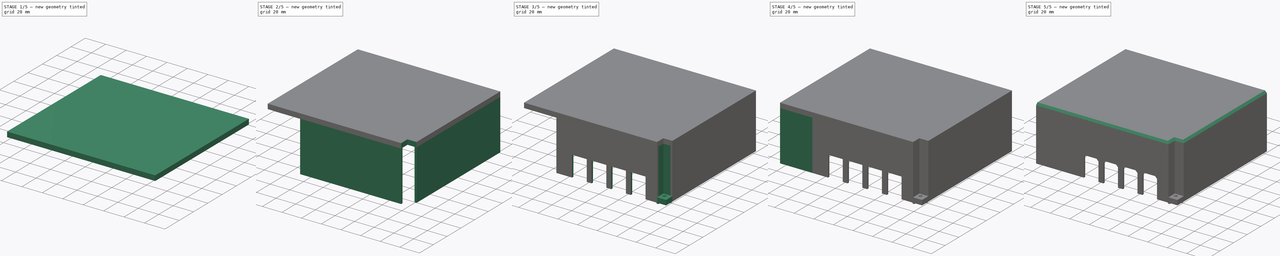
[diagram: build sequence overview — one tinted view per stage of 5, left to right]
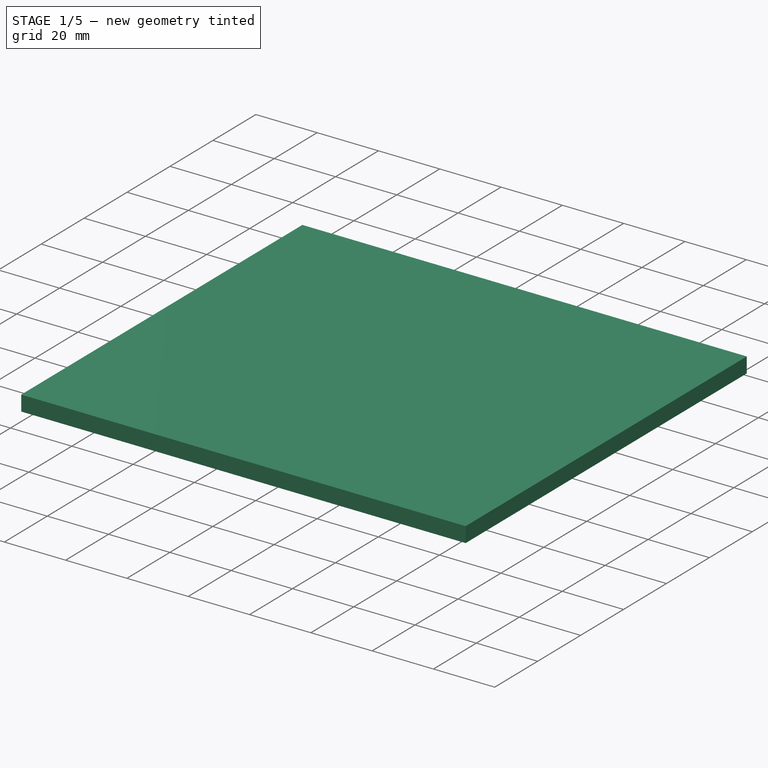
[diagram: stage 1 of 5 — iso view after this stage's code; geometry added in this stage tinted green]
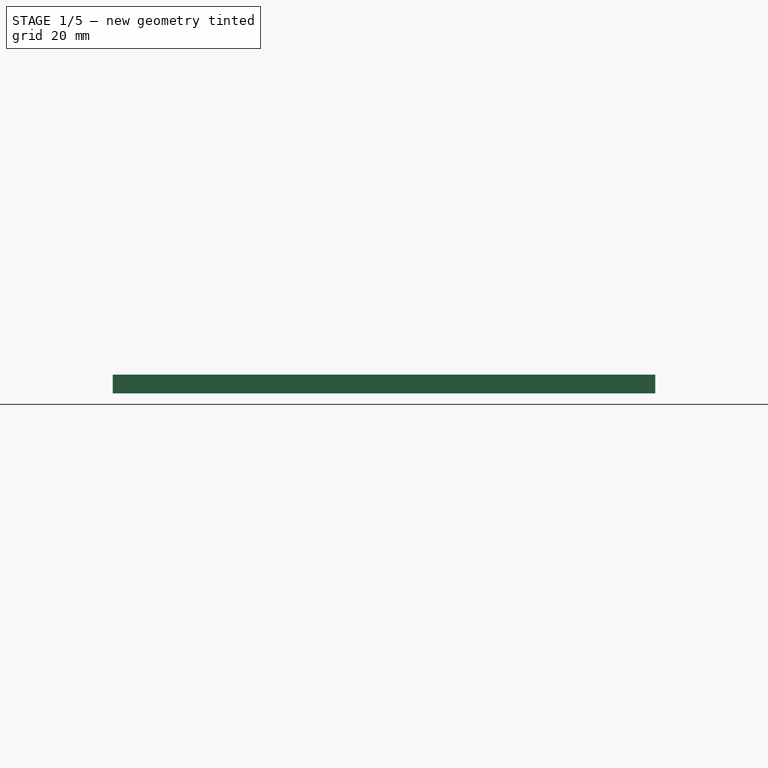
[diagram: stage 1 of 5 — front view after this stage's code; geometry added in this stage tinted green]
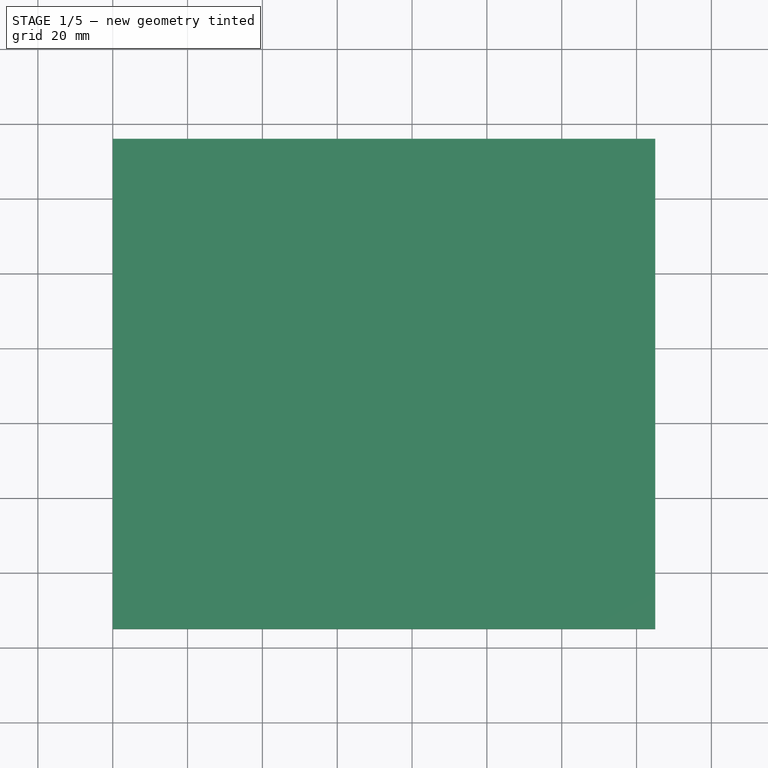
[diagram: stage 1 of 5 — top view after this stage's code; geometry added in this stage tinted green]
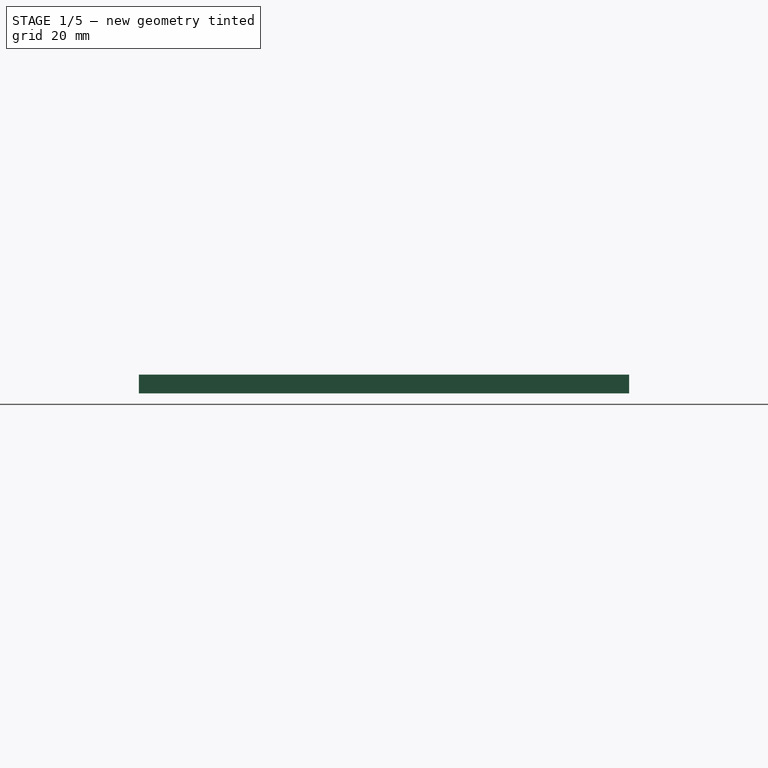
[diagram: stage 1 of 5 — right view after this stage's code; geometry added in this stage tinted green]
FCSTD DOCUMENT  (FreeCAD 2022.1112R26244 +5306 (Git))
Label: FirstPartPeripheralsTop
License: All rights reserved
LicenseURL: http://en.wikipedia.org/wiki/All_rights_reserved
objects: Sketcher::SketchObject×14, PartDesign::Pad×9, PartDesign::Pocket×5, PartDesign::Chamfer×2, PartDesign::CoordinateSystem×1, PartDesign::Body×1, App::Part×1
note: 78 computed .brp shape members not serialized (recipe doc carries the construction recipe); baked Part::Feature solids carry a one-line shape summary decoded from their .brp

FEATURE [PartDesign::CoordinateSystem] LCS_0
  AttacherType = Attacher::AttachEngine3D
  AttachmentSupport = -> [X_Axis001]
  MapMode = 2
  Support = -> [X_Axis001]
  TreeRank = 0
FEATURE [Sketcher::SketchObject] Sketch_1
  ArcFitTolerance = 0
  ExternalBSplineMaxDegree = 0
  ExternalBSplineTolerance = 0
  FullyConstrained = true
  InternalTolerance = 1e-06
  MakeInternals = false
  TreeRank = 0
  sketch-geometry (4):
    g0: LineSegment StartX=0 StartY=0 StartZ=0 EndX=-140 EndY=0 EndZ=0
    g1: LineSegment StartX=-140 StartY=0 StartZ=0 EndX=-140 EndY=116 EndZ=0
    g2: LineSegment StartX=-140 StartY=116 StartZ=0 EndX=0 EndY=116 EndZ=0
    g3: LineSegment StartX=0 StartY=116 StartZ=0 EndX=0 EndY=0 EndZ=0
  constraints (11):
    c: Coincident(g0,g1)
    c: Coincident(g1,g2)
    c: Coincident(g2,g3)
    c: Coincident(g3,g0)
    c: Horizontal(g0)
    c: Horizontal(g2)
    c: Vertical(g1)
    c: Vertical(g3)
    c: Coincident(g0,g-1)
    c: DistanceY(g3,g3) = 116
    c: DistanceX(g2,g2) = 140
FEATURE [PartDesign::Pad] Pad  label="MainSupport"
  AddSubType = 0
  AutoTaperInnerAngle = false
  CheckUpToFaceLimits = true
  ClaimChildren = false
  Direction = (0,0,1)
  Fit = 0
  FitJoin = 0
  InnerFit = 0
  InnerFitJoin = 0
  Length = 5
  Length2 = 100
  NewSolid = false
  Profile = -> Sketch_1
  Suppress = false
  TaperInnerAngle = 0
  TaperInnerAngleRev = 0
  TreeRank = 0
  Type = 0
  _ProfileBasedVersion = 0
FEATURE [Sketcher::SketchObject] Sketch
  ArcFitTolerance = 0
  AttachmentSupport = -> [XY_Plane001]
  ExternalBSplineMaxDegree = 0
  ExternalBSplineTolerance = 0
  ExternalGeometry = -> [Pad]
  FullyConstrained = true
  InternalTolerance = 1e-06
  MakeInternals = false
  MapMode = 5
  Support = -> [XY_Plane001]
  TreeRank = 0
  sketch-geometry (4):
    g0: LineSegment StartX=0 StartY=0 StartZ=0 EndX=-140 EndY=0 EndZ=0
    g1: LineSegment StartX=-140 StartY=0 StartZ=0 EndX=-140 EndY=-15 EndZ=0
    g2: LineSegment StartX=-140 StartY=-15 StartZ=0 EndX=0 EndY=-15 EndZ=0
    g3: LineSegment StartX=0 StartY=-15 StartZ=0 EndX=0 EndY=0 EndZ=0
  constraints (10):
    c: Coincident(g0,g1)
    c: Coincident(g1,g2)
    c: Coincident(g2,g3)
    c: Coincident(g3,g0)
    c: Horizontal(g2)
    c: Vertical(g1)
    c: Vertical(g3)
    c: Coincident(g0,g-1)
    c: Coincident(g0,g-3)
    c: DistanceY(g3,g3) = 15
FEATURE [PartDesign::Pad] Pad001  label="ExtraPeripheralsSize"
  AddSubType = 0
  AutoTaperInnerAngle = false
  BaseFeature = -> Pad
  CheckUpToFaceLimits = true
  ClaimChildren = false
  Direction = (0,0,1)
  Fit = 0
  FitJoin = 0
  InnerFit = 0
  InnerFitJoin = 0
  Length = 5
  Length2 = 100
  NewSolid = false
  Profile = -> Sketch
  Suppress = false
  TaperInnerAngle = 0
  TaperInnerAngleRev = 0
  TreeRank = 0
  Type = 0
  _ProfileBasedVersion = 0
FEATURE [Sketcher::SketchObject] Sketch001
  ArcFitTolerance = 0
  AttachmentSupport = -> [Pad001]
  ExternalBSplineMaxDegree = 0
  ExternalBSplineTolerance = 0
  ExternalGeometry = -> [Pad001]
  FullyConstrained = true
  InternalTolerance = 1e-06
  MakeInternals = false
  MapMode = 5
  Placement = pos=(0,0,0) rot=(0.57735,0.57735,0.57735;2.0944rad)
  Support = -> [Pad001]
  TreeRank = 1
  sketch-geometry (4):
    g0: LineSegment StartX=-15 StartY=5 StartZ=0 EndX=116 EndY=5 EndZ=0
    g1: LineSegment StartX=116 StartY=5 StartZ=0 EndX=116 EndY=0 EndZ=0
    g2: LineSegment StartX=116 StartY=0 StartZ=0 EndX=-15 EndY=0 EndZ=0
    g3: LineSegment StartX=-15 StartY=0 StartZ=0 EndX=-15 EndY=5 EndZ=0
  constraints (10):
    c: Coincident(g0,g1)
    c: Coincident(g1,g2)
    c: Coincident(g2,g3)
    c: Coincident(g3,g0)
    c: Horizontal(g0)
    c: Horizontal(g2)
    c: Vertical(g1)
    c: Vertical(g3)
    c: Coincident(g0,g-3)
    c: Coincident(g1,g-4)
FEATURE [PartDesign::Pad] Pad002  label="ExtraSideSize"
  AddSubType = 0
  AlongSketchNormal = false
  AutoTaperInnerAngle = false
  BaseFeature = -> Pad001
  CheckUpToFaceLimits = true
  ClaimChildren = false
  Direction = (1,0,0)
  Fit = 0
  FitJoin = 0
  InnerFit = 0
  InnerFitJoin = 0
  Length = 5
  Length2 = 100
  Linearize = true
  NewSolid = false
  Profile = -> Sketch001
  Suppress = false
  TaperInnerAngle = 0
  TaperInnerAngleRev = 0
  TreeRank = 2
  Type = 0
  _ProfileBasedVersion = 1
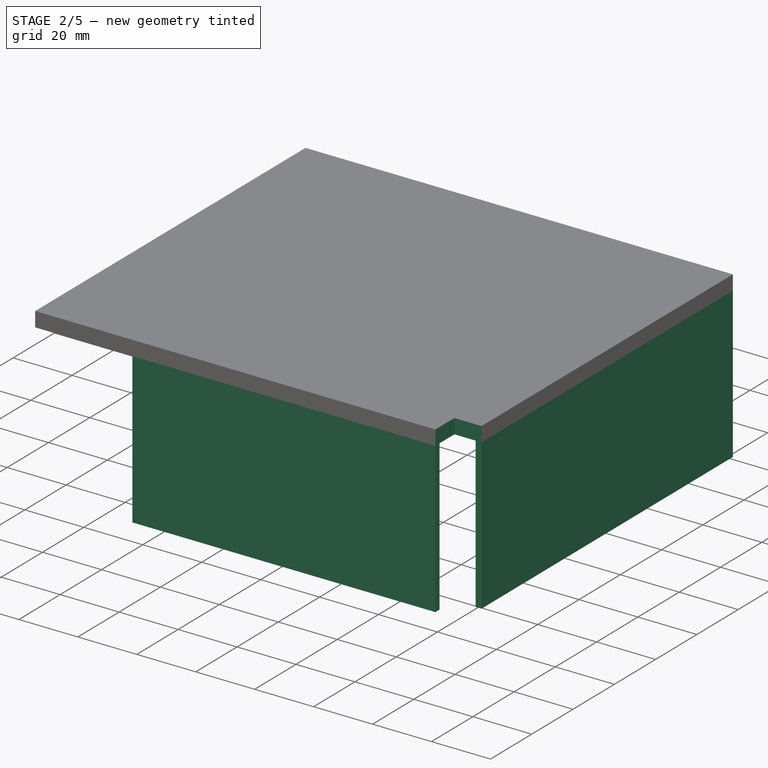
[diagram: stage 2 of 5 — iso view after this stage's code; geometry added in this stage tinted green]
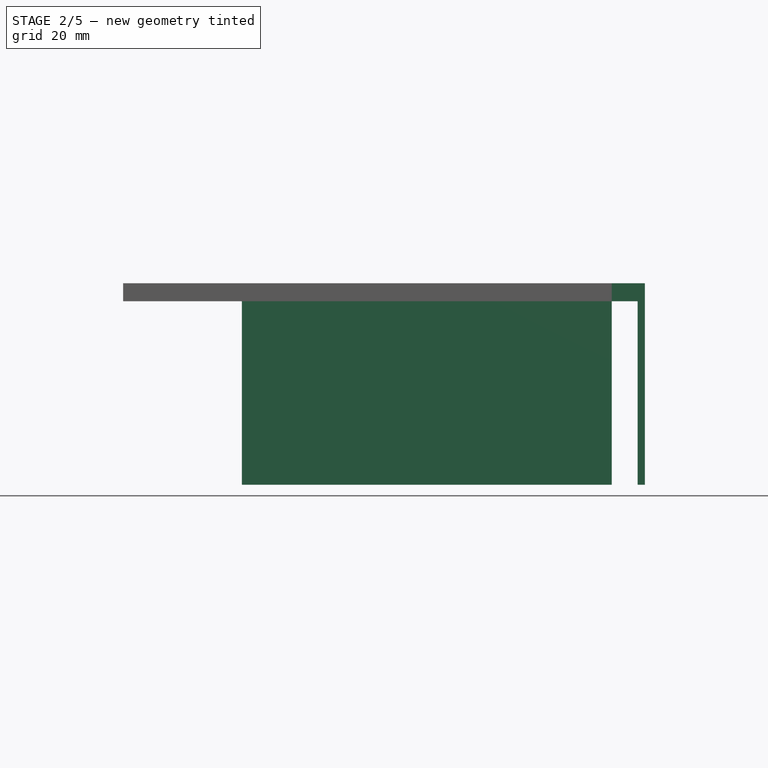
[diagram: stage 2 of 5 — front view after this stage's code; geometry added in this stage tinted green]
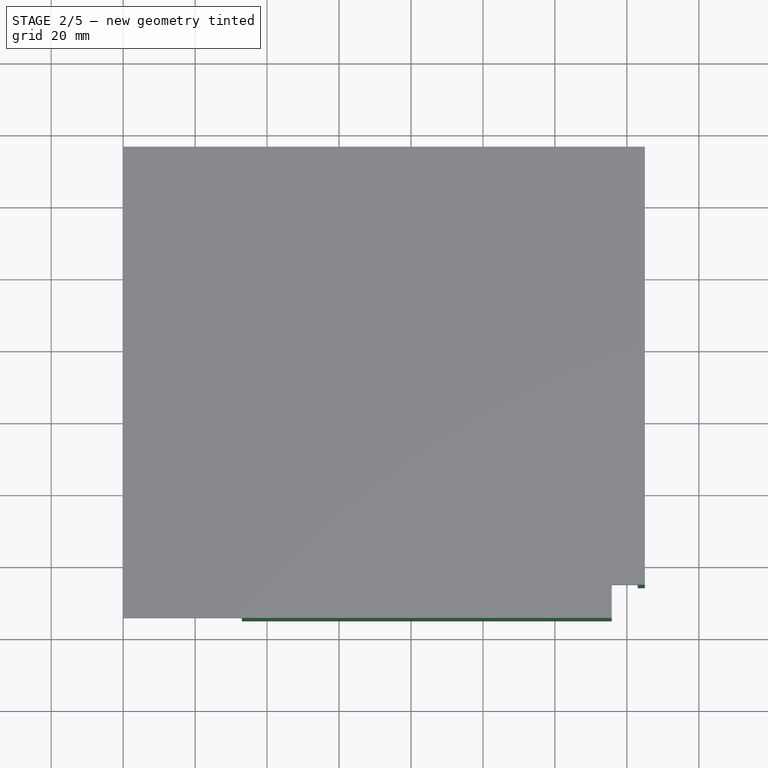
[diagram: stage 2 of 5 — top view after this stage's code; geometry added in this stage tinted green]
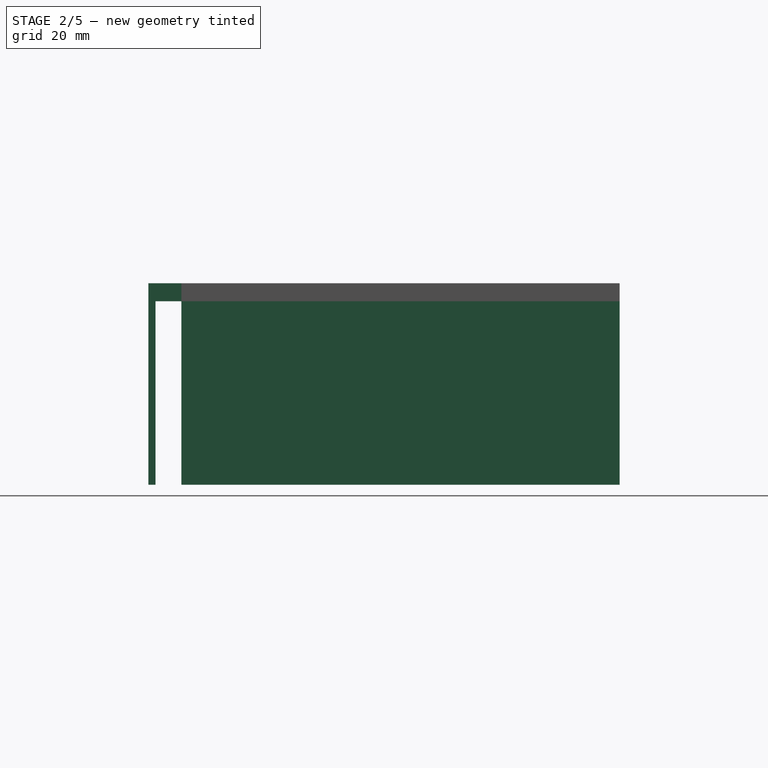
[diagram: stage 2 of 5 — right view after this stage's code; geometry added in this stage tinted green]
FEATURE [Sketcher::SketchObject] Sketch002
  ArcFitTolerance = 0
  AttachmentSupport = -> [Pad002]
  ExternalBSplineMaxDegree = 0
  ExternalBSplineTolerance = 0
  ExternalGeometry = -> [Pad002]
  FullyConstrained = true
  InternalTolerance = 1e-06
  MakeInternals = false
  MapMode = 5
  Placement = pos=(0,0,5) rot=(0,0,1;0rad)
  Support = -> [Pad002]
  TreeRank = 3
  sketch-geometry (4):
    g0: LineSegment StartX=5 StartY=-15 StartZ=0 EndX=-4.2 EndY=-15 EndZ=0
    g1: LineSegment StartX=-4.2 StartY=-15 StartZ=0 EndX=-4.2 EndY=-5.8 EndZ=0
    g2: LineSegment StartX=-4.2 StartY=-5.8 StartZ=0 EndX=5 EndY=-5.8 EndZ=0
    g3: LineSegment StartX=5 StartY=-5.8 StartZ=0 EndX=5 EndY=-15 EndZ=0
  constraints (11):
    c: Coincident(g0,g1)
    c: Coincident(g1,g2)
    c: Coincident(g2,g3)
    c: Coincident(g3,g0)
    c: Horizontal(g0)
    c: Horizontal(g2)
    c: Vertical(g1)
    c: Vertical(g3)
    c: Coincident(g0,g-3)
    c: Equal(g2,g1)
    c: DistanceX(g2,g2) = 9.2
FEATURE [PartDesign::Pocket] Pocket  label="ColumnPartHole"
  AddSubType = 1
  AutoTaperInnerAngle = false
  BaseFeature = -> Pad002
  CheckUpToFaceLimits = true
  ClaimChildren = false
  Fit = 0
  FitJoin = 0
  InnerFit = 0
  InnerFitJoin = 0
  Length = 5
  Length2 = 100
  Linearize = true
  NewSolid = false
  Profile = -> Sketch002
  Suppress = false
  TaperInnerAngle = 0
  TaperInnerAngleRev = 0
  TreeRank = 4
  Type = 0
  _ProfileBasedVersion = 1
  _Version = 1
FEATURE [Sketcher::SketchObject] Sketch003
  ArcFitTolerance = 0
  AttachmentSupport = -> [Pocket]
  ExternalBSplineMaxDegree = 0
  ExternalBSplineTolerance = 0
  ExternalGeometry = -> [Pocket]
  FullyConstrained = true
  InternalTolerance = 1e-06
  MakeInternals = false
  MapMode = 5
  Placement = pos=(0,0,0) rot=(1,0,0;3.14159rad)
  Support = -> [Pocket]
  TreeRank = 5
  sketch-geometry (4):
    g0: LineSegment StartX=-4.2 StartY=15 StartZ=0 EndX=-107 EndY=15 EndZ=0
    g1: LineSegment StartX=-107 StartY=15 StartZ=0 EndX=-107 EndY=13 EndZ=0
    g2: LineSegment StartX=-107 StartY=13 StartZ=0 EndX=-4.2 EndY=13 EndZ=0
    g3: LineSegment StartX=-4.2 StartY=13 StartZ=0 EndX=-4.2 EndY=15 EndZ=0
  constraints (11):
    c: Coincident(g0,g1)
    c: Coincident(g1,g2)
    c: Coincident(g2,g3)
    c: Coincident(g3,g0)
    c: Horizontal(g0)
    c: Horizontal(g2)
    c: Vertical(g1)
    c: Vertical(g3)
    c: Coincident(g0,g-4)
    c: DistanceX(g0,g-1) = 107
    c: DistanceY(g3,g3) = 2
FEATURE [PartDesign::Pad] Pad003  label="PeripheralPanel"
  AddSubType = 0
  AlongSketchNormal = false
  AutoTaperInnerAngle = false
  BaseFeature = -> Pocket
  CheckUpToFaceLimits = true
  ClaimChildren = false
  Direction = (0,0,-1)
  Fit = 0
  FitJoin = 0
  InnerFit = 0
  InnerFitJoin = 0
  Length = 51
  Length2 = 100
  Linearize = true
  NewSolid = false
  Profile = -> Sketch003
  Suppress = false
  TaperInnerAngle = 0
  TaperInnerAngleRev = 0
  TreeRank = 6
  Type = 0
  _ProfileBasedVersion = 1
FEATURE [Sketcher::SketchObject] Sketch004
  ArcFitTolerance = 0
  AttachmentSupport = -> [Pad003]
  ExternalBSplineMaxDegree = 0
  ExternalBSplineTolerance = 0
  ExternalGeometry = -> [Pad003]
  FullyConstrained = true
  InternalTolerance = 1e-06
  MakeInternals = false
  MapMode = 5
  Placement = pos=(0,0,0) rot=(1,0,0;3.14159rad)
  Support = -> [Pad003]
  TreeRank = 7
  sketch-geometry (4):
    g0: LineSegment StartX=5 StartY=-116 StartZ=0 EndX=3 EndY=-116 EndZ=0
    g1: LineSegment StartX=3 StartY=-116 StartZ=0 EndX=3 EndY=5.8 EndZ=0
    g2: LineSegment StartX=3 StartY=5.8 StartZ=0 EndX=5 EndY=5.8 EndZ=0
    g3: LineSegment StartX=5 StartY=5.8 StartZ=0 EndX=5 EndY=-116 EndZ=0
  constraints (10):
    c: Coincident(g0,g1)
    c: Coincident(g1,g2)
    c: Coincident(g2,g3)
    c: Coincident(g3,g0)
    c: Horizontal(g0)
    c: Horizontal(g2)
    c: Vertical(g1)
    c: Coincident(g0,g-3)
    c: Coincident(g2,g-3)
    c: DistanceX(g0,g0) = 2
FEATURE [PartDesign::Pad] Pad004  label="SidePanel"
  AddSubType = 0
  AlongSketchNormal = false
  AutoTaperInnerAngle = false
  BaseFeature = -> Pad003
  CheckUpToFaceLimits = true
  ClaimChildren = false
  Direction = (0,0,-1)
  Fit = 0
  FitJoin = 0
  InnerFit = 0
  InnerFitJoin = 0
  Length = 51
  Length2 = 100
  Linearize = true
  NewSolid = false
  Profile = -> Sketch004
  Suppress = false
  TaperInnerAngle = 0
  TaperInnerAngleRev = 0
  TreeRank = 8
  Type = 0
  _ProfileBasedVersion = 1
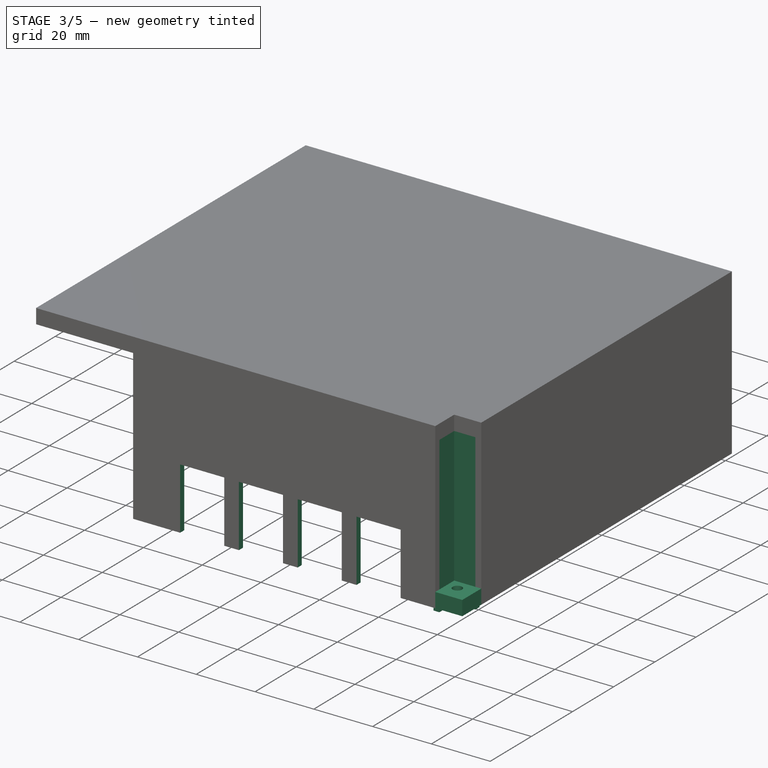
[diagram: stage 3 of 5 — iso view after this stage's code; geometry added in this stage tinted green]
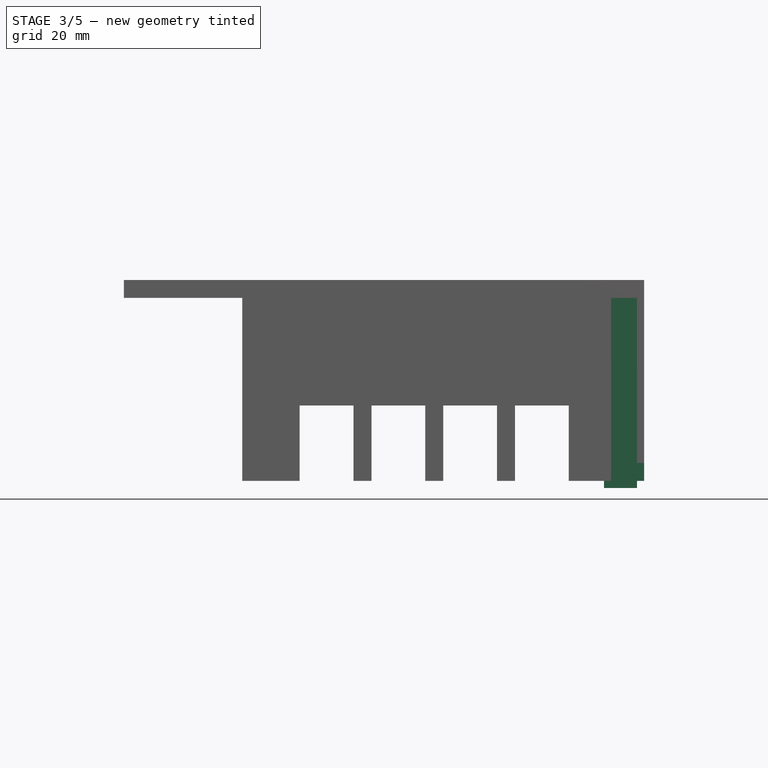
[diagram: stage 3 of 5 — front view after this stage's code; geometry added in this stage tinted green]
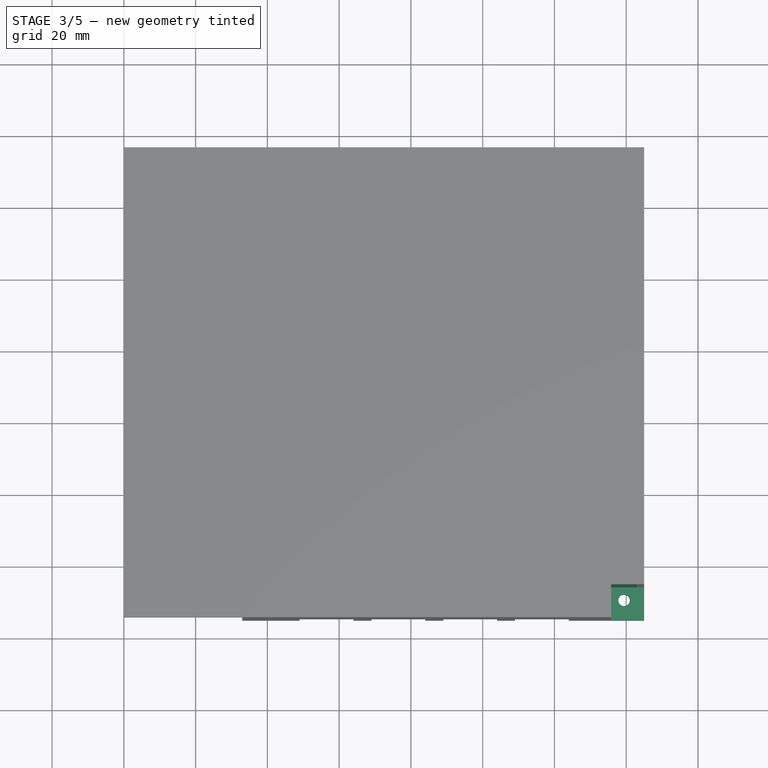
[diagram: stage 3 of 5 — top view after this stage's code; geometry added in this stage tinted green]
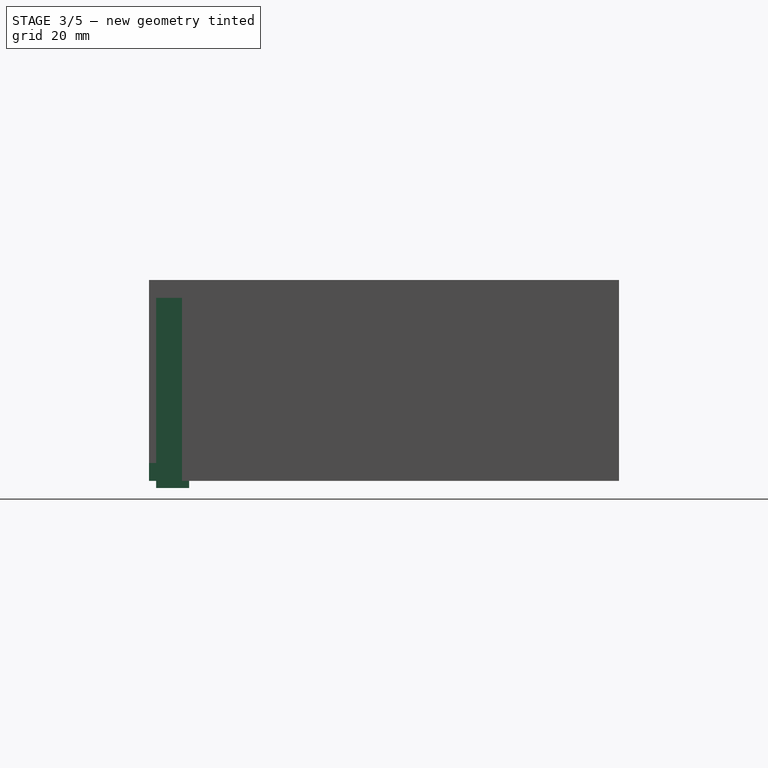
[diagram: stage 3 of 5 — right view after this stage's code; geometry added in this stage tinted green]
FEATURE [Sketcher::SketchObject] Sketch005
  ArcFitTolerance = 0
  AttachmentSupport = -> [Pad004]
  ExternalBSplineMaxDegree = 0
  ExternalBSplineTolerance = 0
  ExternalGeometry = -> [Pad004]
  FullyConstrained = true
  InternalTolerance = 1e-06
  MakeInternals = false
  MapMode = 5
  Placement = pos=(0,0,0) rot=(1,0,0;3.14159rad)
  Support = -> [Pad004]
  TreeRank = 9
  sketch-geometry (6):
    g0: LineSegment StartX=-4.2 StartY=13 StartZ=0 EndX=-6.2 EndY=13 EndZ=0
    g1: LineSegment StartX=-6.2 StartY=13 StartZ=0 EndX=-6.2 EndY=3.8 EndZ=0
    g2: LineSegment StartX=-6.2 StartY=3.8 StartZ=0 EndX=3 EndY=3.8 EndZ=0
    g3: LineSegment StartX=3 StartY=3.8 StartZ=0 EndX=3 EndY=5.8 EndZ=0
    g4: LineSegment StartX=-4.2 StartY=13 StartZ=0 EndX=-4.2 EndY=5.8 EndZ=0
    g5: LineSegment StartX=-4.2 StartY=5.8 StartZ=0 EndX=3 EndY=5.8 EndZ=0
  constraints (15):
    c: Coincident(g0,g-3)
    c: Horizontal(g0)
    c: Coincident(g1,g0)
    c: Vertical(g1)
    c: Coincident(g2,g1)
    c: Horizontal(g2)
    c: Coincident(g3,g2)
    c: Coincident(g3,g-4)
    c: Vertical(g3)
    c: DistanceX(g0,g0) = 2
    c: DistanceY(g3,g3) = 2
    c: Coincident(g4,g0)
    c: Coincident(g4,g-3)
    c: Coincident(g5,g4)
    c: Coincident(g5,g3)
FEATURE [PartDesign::Pad] Pad005  label="ColumnPartPanel"
  AddSubType = 0
  AlongSketchNormal = false
  AutoTaperInnerAngle = false
  BaseFeature = -> Pad004
  CheckUpToFaceLimits = true
  ClaimChildren = false
  Direction = (0,0,-1)
  Fit = 0
  FitJoin = 0
  InnerFit = 0
  InnerFitJoin = 0
  Length = 53
  Length2 = 100
  Linearize = true
  NewSolid = false
  Profile = -> Sketch005
  Suppress = false
  TaperInnerAngle = 0
  TaperInnerAngleRev = 0
  TreeRank = 10
  Type = 0
  _ProfileBasedVersion = 1
FEATURE [Sketcher::SketchObject] Sketch006
  ArcFitTolerance = 0
  AttachmentSupport = -> [Pad005]
  ExternalBSplineMaxDegree = 0
  ExternalBSplineTolerance = 0
  ExternalGeometry = -> [Pad005]
  FullyConstrained = true
  InternalTolerance = 1e-06
  MakeInternals = false
  MapMode = 5
  Placement = pos=(0,-15,0) rot=(1,0,0;1.5708rad)
  Support = -> [Pad005]
  TreeRank = 11
  sketch-geometry (20):
    g0: LineSegment [constr] StartX=0 StartY=0 StartZ=0 EndX=-107 EndY=0 EndZ=0
    g1: LineSegment [constr] StartX=-107 StartY=0 StartZ=0 EndX=-107 EndY=-30 EndZ=0
    g2: LineSegment [constr] StartX=-107 StartY=-30 StartZ=0 EndX=0 EndY=-30 EndZ=0
    g3: LineSegment [constr] StartX=0 StartY=-30 StartZ=0 EndX=0 EndY=0 EndZ=0
    g4: LineSegment StartX=-16 StartY=-30 StartZ=0 EndX=-31 EndY=-30 EndZ=0
    g5: LineSegment StartX=-31 StartY=-30 StartZ=0 EndX=-31 EndY=-71 EndZ=0
    g6: LineSegment StartX=-31 StartY=-71 StartZ=0 EndX=-16 EndY=-71 EndZ=0
    g7: LineSegment StartX=-16 StartY=-71 StartZ=0 EndX=-16 EndY=-30 EndZ=0
    g8: LineSegment StartX=-36 StartY=-30 StartZ=0 EndX=-51 EndY=-30 EndZ=0
    g9: LineSegment StartX=-51 StartY=-30 StartZ=0 EndX=-51 EndY=-71 EndZ=0
    g10: LineSegment StartX=-51 StartY=-71 StartZ=0 EndX=-36 EndY=-71 EndZ=0
    g11: LineSegment StartX=-36 StartY=-71 StartZ=0 EndX=-36 EndY=-30 EndZ=0
    g12: LineSegment StartX=-56 StartY=-30 StartZ=0 EndX=-71 EndY=-30 EndZ=0
    g13: LineSegment StartX=-71 StartY=-30 StartZ=0 EndX=-71 EndY=-71 EndZ=0
    g14: LineSegment StartX=-71 StartY=-71 StartZ=0 EndX=-56 EndY=-71 EndZ=0
    g15: LineSegment StartX=-56 StartY=-71 StartZ=0 EndX=-56 EndY=-30 EndZ=0
    g16: LineSegment StartX=-76 StartY=-30 StartZ=0 EndX=-91 EndY=-30 EndZ=0
    g17: LineSegment StartX=-91 StartY=-30 StartZ=0 EndX=-91 EndY=-71 EndZ=0
    g18: LineSegment StartX=-91 StartY=-71 StartZ=0 EndX=-76 EndY=-71 EndZ=0
    g19: LineSegment StartX=-76 StartY=-71 StartZ=0 EndX=-76 EndY=-30 EndZ=0
  constraints (59):
    c: Coincident(g0,g1)
    c: Coincident(g1,g2)
    c: Coincident(g2,g3)
    c: Coincident(g3,g0)
    c: Horizontal(g0)
    c: Horizontal(g2)
    c: Vertical(g1)
    c: Vertical(g3)
    c: Coincident(g0,g-1)
    c: PointOnObject(g1,g-3)
    c: DistanceY(g1,g1) = 30
    c: Coincident(g4,g5)
    c: Coincident(g5,g6)
    c: Coincident(g6,g7)
    c: Coincident(g7,g4)
    c: Horizontal(g4)
    c: Horizontal(g6)
    c: Vertical(g5)
    c: Vertical(g7)
    c: PointOnObject(g4,g2)
    c: Coincident(g8,g9)
    c: Coincident(g9,g10)
    c: Coincident(g10,g11)
    c: Coincident(g11,g8)
    c: Horizontal(g8)
    c: Horizontal(g10)
    c: Vertical(g9)
    c: Vertical(g11)
    c: PointOnObject(g8,g2)
    c: Coincident(g12,g13)
    c: Coincident(g13,g14)
    c: Coincident(g14,g15)
    c: Coincident(g15,g12)
    c: Horizontal(g12)
    c: Horizontal(g14)
    c: Vertical(g13)
    c: Vertical(g15)
    c: PointOnObject(g12,g2)
    c: Coincident(g16,g17)
    c: Coincident(g17,g18)
    c: Coincident(g18,g19)
    c: Coincident(g19,g16)
    c: Horizontal(g16)
    c: Horizontal(g18)
    c: Vertical(g17)
    c: Vertical(g19)
    c: PointOnObject(g16,g2)
    c: DistanceX(g4,g2) = 16
    c: DistanceX(g4,g4) = 15
    c: Equal(g8,g4)
    c: Equal(g12,g8)
    c: Equal(g16,g12)
    c: DistanceX(g8,g4) = 5
    c: DistanceX(g12,g8) = 5
    c: DistanceX(g16,g12) = 5
    c: Equal(g5,g9)
    c: Equal(g9,g13)
    c: Equal(g13,g17)
    c: DistanceY(g7,g7) = 41
FEATURE [PartDesign::Pocket] Pocket001  label="PeripheralHoles"
  AddSubType = 1
  AutoTaperInnerAngle = false
  BaseFeature = -> Pad005
  CheckUpToFaceLimits = true
  ClaimChildren = false
  Fit = 0
  FitJoin = 0
  InnerFit = 0
  InnerFitJoin = 0
  Length = 0
  Length2 = 100
  Linearize = true
  NewSolid = false
  Profile = -> Sketch006
  Suppress = false
  TaperInnerAngle = 0
  TaperInnerAngleRev = 0
  TreeRank = 12
  Type = 2
  _ProfileBasedVersion = 1
  _Version = 1
FEATURE [Sketcher::SketchObject] Sketch007
  ArcFitTolerance = 0
  AttachmentSupport = -> [Pocket001]
  ExternalBSplineMaxDegree = 0
  ExternalBSplineTolerance = 0
  ExternalGeometry = -> [Pocket001]
  FullyConstrained = true
  InternalTolerance = 1e-06
  MakeInternals = false
  MapMode = 5
  Placement = pos=(0,-5.8,0) rot=(1,0,0;1.5708rad)
  Support = -> [Pocket001]
  TreeRank = 13
  sketch-geometry (4):
    g0: LineSegment StartX=-4.2 StartY=-51 StartZ=0 EndX=5 EndY=-51 EndZ=0
    g1: LineSegment StartX=5 StartY=-51 StartZ=0 EndX=5 EndY=-46 EndZ=0
    g2: LineSegment StartX=5 StartY=-46 StartZ=0 EndX=-4.2 EndY=-46 EndZ=0
    g3: LineSegment StartX=-4.2 StartY=-46 StartZ=0 EndX=-4.2 EndY=-51 EndZ=0
  constraints (10):
    c: Coincident(g0,g1)
    c: Coincident(g1,g2)
    c: Coincident(g2,g3)
    c: Coincident(g3,g0)
    c: Horizontal(g2)
    c: Vertical(g1)
    c: Vertical(g3)
    c: Coincident(g0,g-3)
    c: Coincident(g0,g-4)
    c: DistanceY(g1,g1) = 5
FEATURE [PartDesign::Pad] Pad006  label="HoleSupport"
  AddSubType = 0
  AlongSketchNormal = false
  AutoTaperInnerAngle = false
  BaseFeature = -> Pocket001
  CheckUpToFaceLimits = true
  ClaimChildren = false
  Direction = (0,-1,2e-16)
  Fit = 0
  FitJoin = 0
  InnerFit = 0
  InnerFitJoin = 0
  Length = 10
  Length2 = 100
  Linearize = true
  NewSolid = false
  Profile = -> Sketch007
  Suppress = false
  TaperInnerAngle = 0
  TaperInnerAngleRev = 0
  TreeRank = 14
  Type = 3
  UpToFace = -> Pocket001 [Face12]
  _ProfileBasedVersion = 1
FEATURE [Sketcher::SketchObject] Sketch008
  ArcFitTolerance = 0
  AttachmentSupport = -> [Pad006]
  ExternalBSplineMaxDegree = 0
  ExternalBSplineTolerance = 0
  ExternalGeometry = -> [Pad006]
  FullyConstrained = true
  InternalTolerance = 1e-06
  MakeInternals = false
  MapMode = 5
  Placement = pos=(0,-1.01e-14,-46) rot=(0,0,1;0rad)
  Support = -> [Pad006]
  TreeRank = 15
  sketch-geometry (3):
    g0: LineSegment [constr] StartX=-4.2 StartY=-9.4 StartZ=0 EndX=-0.6 EndY=-9.4 EndZ=0
    g1: LineSegment [constr] StartX=-0.6 StartY=-9.4 StartZ=0 EndX=-0.6 EndY=-15 EndZ=0
    g2: Circle CenterX=-0.6 CenterY=-9.4 CenterZ=0 NormalX=0 NormalY=0 NormalZ=1 AngleXU=0 Radius=1.6
  constraints (9):
    c: Horizontal(g0)
    c: Coincident(g1,g0)
    c: Vertical(g1)
    c: Coincident(g2,g0)
    c: Diameter(g2) = 3.2
    c: PointOnObject(g0,g-3)
    c: PointOnObject(g1,g-4)
    c: DistanceX(g-4,g1) = 3.6
    c: DistanceY(g0,g-3) = 3.6
FEATURE [PartDesign::Pocket] Pocket002  label="Hole"
  AddSubType = 1
  AutoTaperInnerAngle = false
  BaseFeature = -> Pad006
  CheckUpToFaceLimits = true
  ClaimChildren = false
  Fit = 0
  FitJoin = 0
  InnerFit = 0
  InnerFitJoin = 0
  Length = 5
  Length2 = 100
  Linearize = true
  NewSolid = false
  Profile = -> Sketch008
  Suppress = false
  TaperInnerAngle = 0
  TaperInnerAngleRev = 0
  TreeRank = 16
  Type = 2
  _ProfileBasedVersion = 1
  _Version = 1
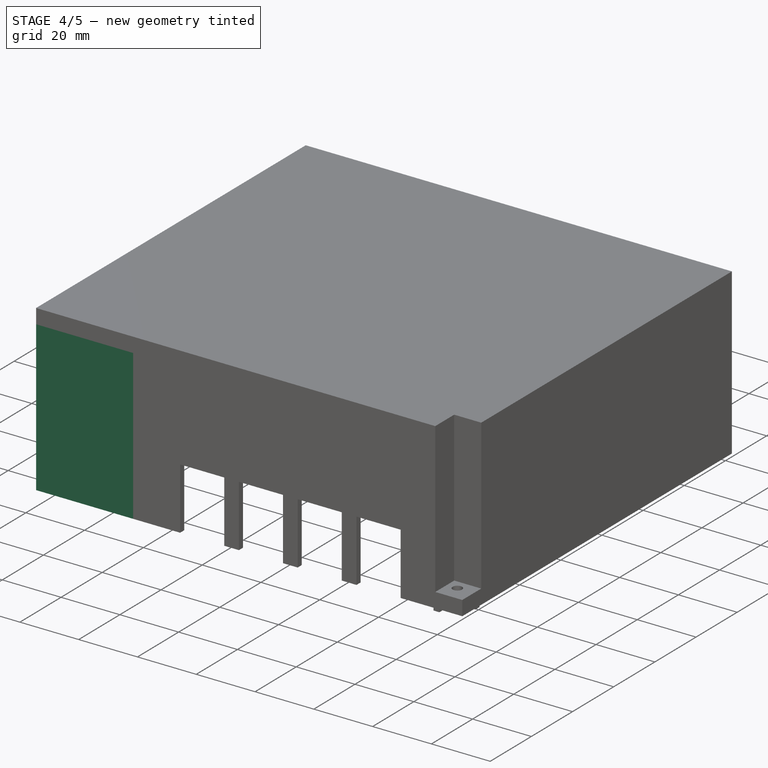
[diagram: stage 4 of 5 — iso view after this stage's code; geometry added in this stage tinted green]
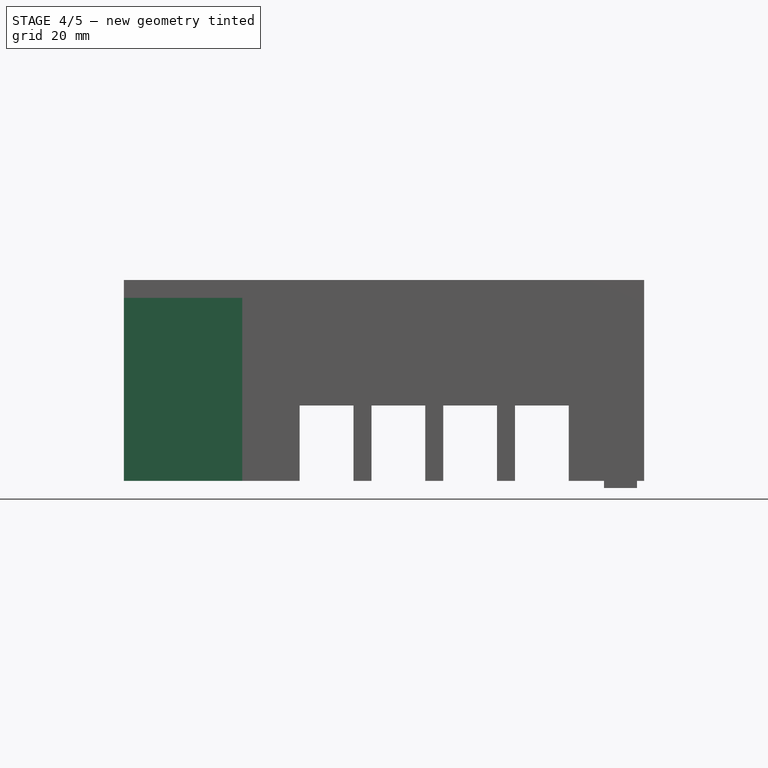
[diagram: stage 4 of 5 — front view after this stage's code; geometry added in this stage tinted green]
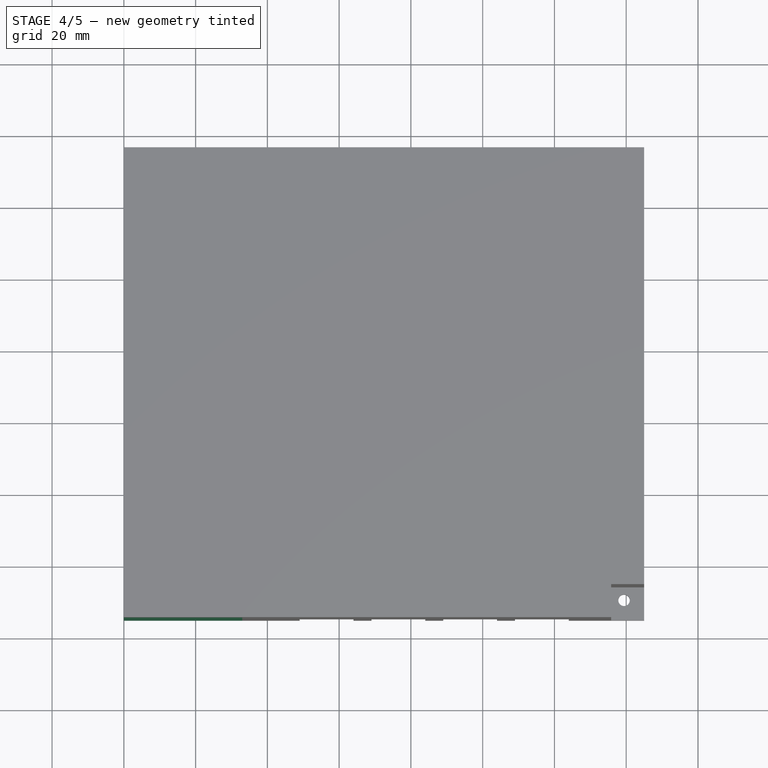
[diagram: stage 4 of 5 — top view after this stage's code; geometry added in this stage tinted green]
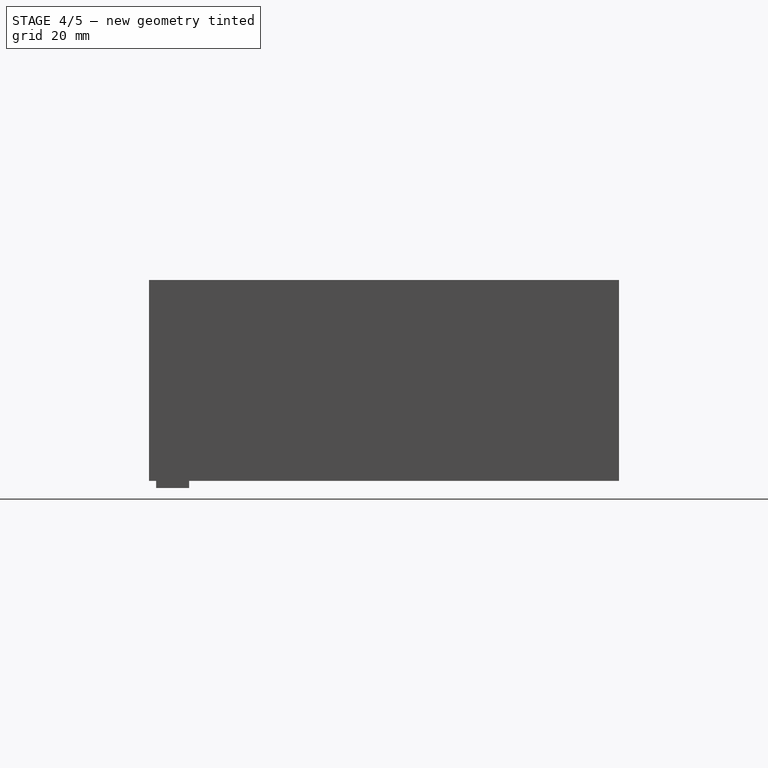
[diagram: stage 4 of 5 — right view after this stage's code; geometry added in this stage tinted green]
FEATURE [Sketcher::SketchObject] Sketch009
  ArcFitTolerance = 0
  AttachmentSupport = -> [Pocket002]
  ExternalBSplineMaxDegree = 0
  ExternalBSplineTolerance = 0
  ExternalGeometry = -> [Pocket002]
  FullyConstrained = true
  InternalTolerance = 1e-06
  MakeInternals = false
  MapMode = 5
  Placement = pos=(0,0,0) rot=(1,0,0;3.14159rad)
  Support = -> [Pocket002]
  TreeRank = 17
  sketch-geometry (4):
    g0: LineSegment StartX=-140 StartY=15 StartZ=0 EndX=-107 EndY=15 EndZ=0
    g1: LineSegment StartX=-107 StartY=15 StartZ=0 EndX=-107 EndY=13 EndZ=0
    g2: LineSegment StartX=-107 StartY=13 StartZ=0 EndX=-140 EndY=13 EndZ=0
    g3: LineSegment StartX=-140 StartY=13 StartZ=0 EndX=-140 EndY=15 EndZ=0
  constraints (10):
    c: Coincident(g0,g1)
    c: Coincident(g1,g2)
    c: Coincident(g2,g3)
    c: Coincident(g3,g0)
    c: Horizontal(g0)
    c: Horizontal(g2)
    c: Vertical(g1)
    c: Vertical(g3)
    c: Coincident(g0,g-3)
    c: Coincident(g1,g-4)
FEATURE [PartDesign::Pad] Pad007  label="EndPeripheralPanel"
  AddSubType = 0
  AlongSketchNormal = false
  AutoTaperInnerAngle = false
  BaseFeature = -> Pocket002
  CheckUpToFaceLimits = true
  ClaimChildren = false
  Direction = (0,0,-1)
  Fit = 0
  FitJoin = 0
  InnerFit = 0
  InnerFitJoin = 0
  Length = 51
  Length2 = 100
  Linearize = true
  NewSolid = false
  Profile = -> Sketch009
  Suppress = false
  TaperInnerAngle = 0
  TaperInnerAngleRev = 0
  TreeRank = 18
  Type = 0
  _ProfileBasedVersion = 1
FEATURE [Sketcher::SketchObject] Sketch010
  ArcFitTolerance = 0
  AttachmentSupport = -> [Pad007]
  ExternalBSplineMaxDegree = 0
  ExternalBSplineTolerance = 0
  ExternalGeometry = -> [Pad007]
  FullyConstrained = true
  InternalTolerance = 1e-06
  MakeInternals = false
  MapMode = 5
  Placement = pos=(-140,0,0) rot=(0.57735,-0.57735,-0.57735;2.0944rad)
  Support = -> [Pad007]
  TreeRank = 19
  sketch-geometry (4):
    g0: LineSegment StartX=-95.05 StartY=3.58 StartZ=0 EndX=13.05 EndY=3.58 EndZ=0
    g1: LineSegment StartX=13.05 StartY=3.58 StartZ=0 EndX=13.05 EndY=1.5 EndZ=0
    g2: LineSegment StartX=13.05 StartY=1.5 StartZ=0 EndX=-95.05 EndY=1.5 EndZ=0
    g3: LineSegment StartX=-95.05 StartY=1.5 StartZ=0 EndX=-95.05 EndY=3.58 EndZ=0
  constraints (12):
    c: Coincident(g0,g1)
    c: Coincident(g1,g2)
    c: Coincident(g2,g3)
    c: Coincident(g3,g0)
    c: Horizontal(g0)
    c: Horizontal(g2)
    c: Vertical(g1)
    c: Vertical(g3)
    c: DistanceX(g-3,g0) = 20.95
    c: DistanceX(g0,g-4) = 1.95
    c: DistanceY(g1,g1) = 2.08
    c: DistanceY(g-4,g1) = 1.5
FEATURE [PartDesign::Pocket] Pocket003  label="PuzzleHole1"
  AddSubType = 1
  AutoTaperInnerAngle = false
  BaseFeature = -> Pad007
  CheckUpToFaceLimits = true
  ClaimChildren = false
  Fit = 0
  FitJoin = 0
  InnerFit = 0
  InnerFitJoin = 0
  Length = 11
  Length2 = 100
  Linearize = true
  NewSolid = false
  Profile = -> Sketch010
  Suppress = false
  TaperInnerAngle = 0
  TaperInnerAngleRev = 0
  TreeRank = 20
  Type = 0
  _ProfileBasedVersion = 1
  _Version = 1
FEATURE [Sketcher::SketchObject] Sketch011
  ArcFitTolerance = 0
  AttachmentSupport = -> [Pocket003]
  ExternalBSplineMaxDegree = 0
  ExternalBSplineTolerance = 0
  ExternalGeometry = -> [Pocket003]
  FullyConstrained = true
  InternalTolerance = 1e-06
  MakeInternals = false
  MapMode = 5
  Placement = pos=(0,116,0) rot=(0,0.707107,0.707107;3.14159rad)
  Support = -> [Pocket003]
  TreeRank = 21
  sketch-geometry (4):
    g0: LineSegment StartX=-3.05 StartY=3.58 StartZ=0 EndX=119.05 EndY=3.58 EndZ=0
    g1: LineSegment StartX=119.05 StartY=3.58 StartZ=0 EndX=119.05 EndY=1.5 EndZ=0
    g2: LineSegment StartX=119.05 StartY=1.5 StartZ=0 EndX=-3.05 EndY=1.5 EndZ=0
    g3: LineSegment StartX=-3.05 StartY=1.5 StartZ=0 EndX=-3.05 EndY=3.58 EndZ=0
  constraints (12):
    c: Coincident(g0,g1)
    c: Coincident(g1,g2)
    c: Coincident(g2,g3)
    c: Coincident(g3,g0)
    c: Horizontal(g0)
    c: Horizontal(g2)
    c: Vertical(g1)
    c: Vertical(g3)
    c: DistanceX(g0,g-3) = 20.95
    c: DistanceX(g-4,g0) = 1.95
    c: DistanceY(g3,g3) = 2.08
    c: DistanceY(g-4,g2) = 1.5
FEATURE [PartDesign::Pocket] Pocket004  label="PuzzleHole2"
  AddSubType = 1
  AutoTaperInnerAngle = false
  BaseFeature = -> Pocket003
  CheckUpToFaceLimits = true
  ClaimChildren = false
  Fit = 0
  FitJoin = 0
  InnerFit = 0
  InnerFitJoin = 0
  Length = 11
  Length2 = 100
  Linearize = true
  NewSolid = false
  Profile = -> Sketch011
  Suppress = false
  TaperInnerAngle = 0
  TaperInnerAngleRev = 0
  TreeRank = 22
  Type = 0
  _ProfileBasedVersion = 1
  _Version = 1
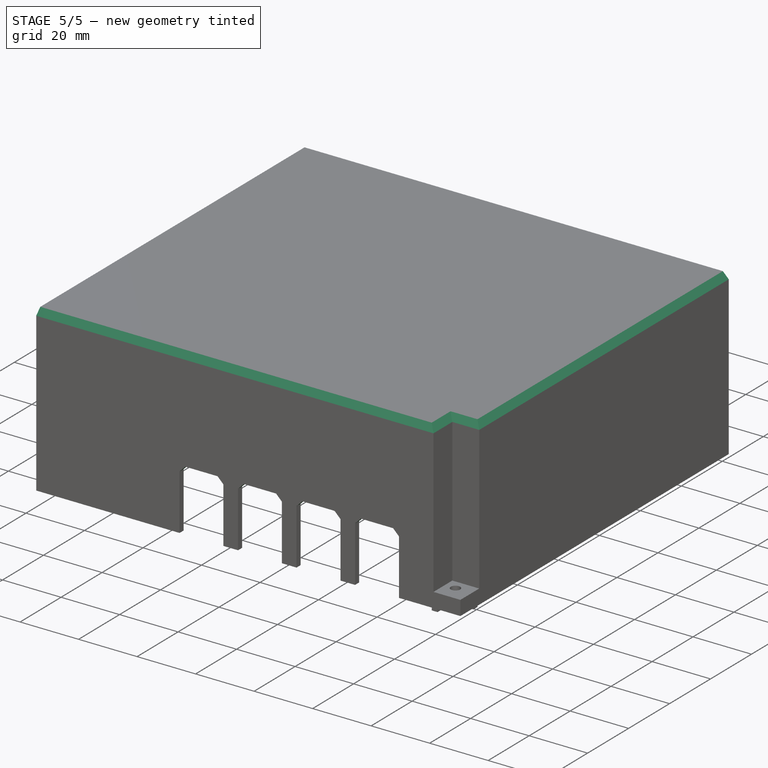
[diagram: stage 5 of 5 — iso view after this stage's code; geometry added in this stage tinted green]
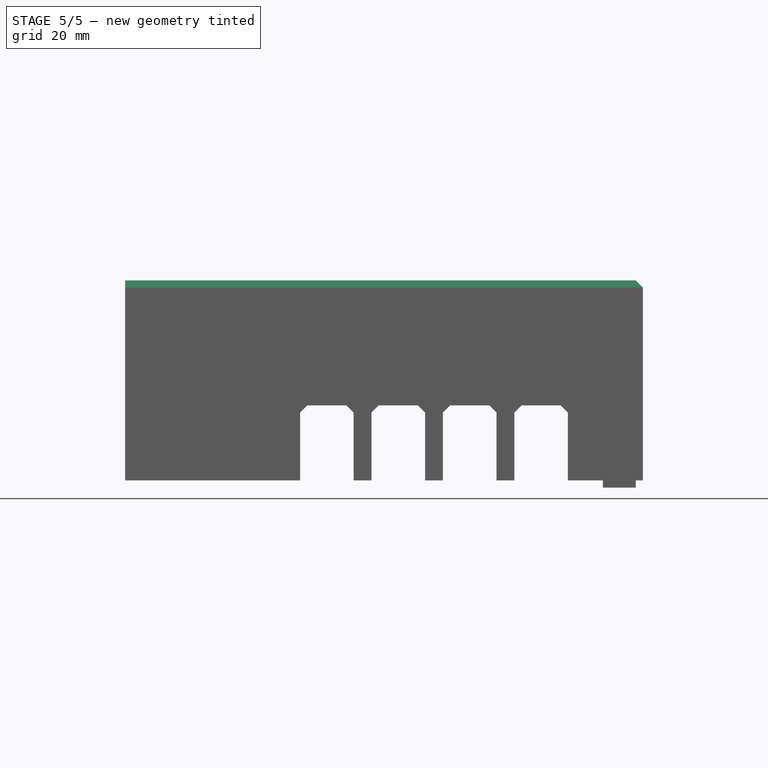
[diagram: stage 5 of 5 — front view after this stage's code; geometry added in this stage tinted green]
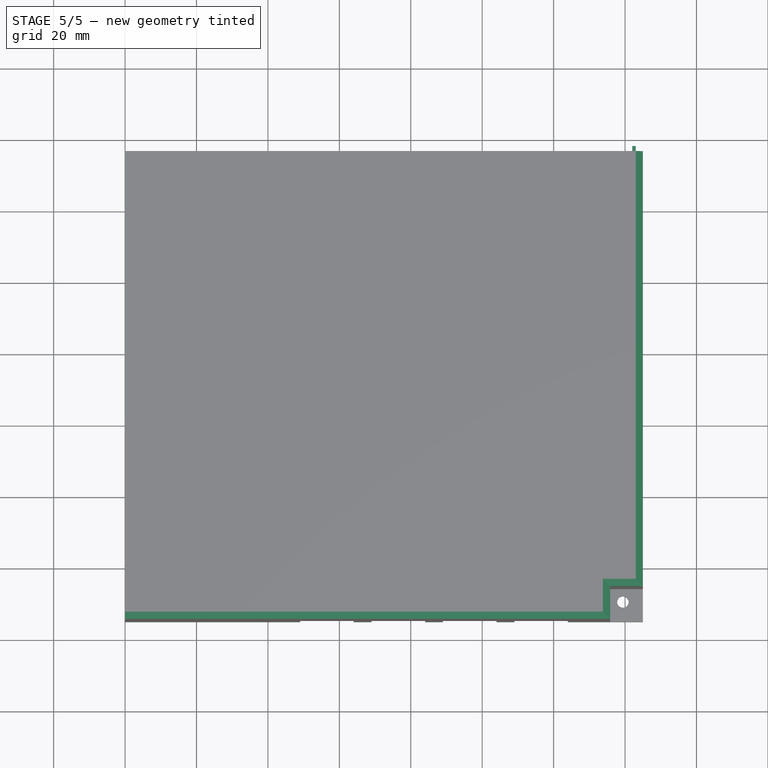
[diagram: stage 5 of 5 — top view after this stage's code; geometry added in this stage tinted green]
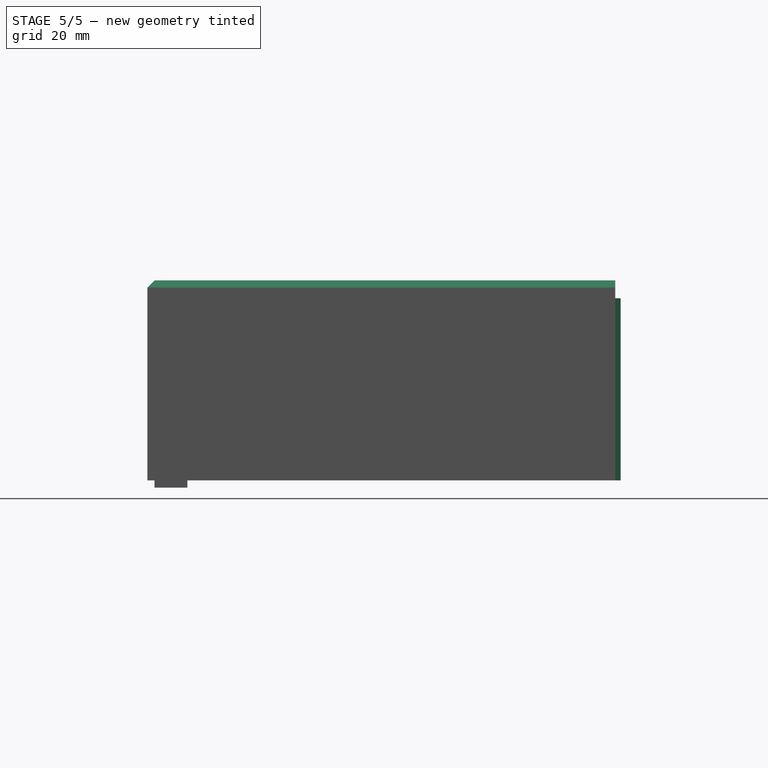
[diagram: stage 5 of 5 — right view after this stage's code; geometry added in this stage tinted green]
FEATURE [PartDesign::Chamfer] Chamfer
  AddSubType = 0
  Angle = 45
  Base = -> Pocket004 [Edge58,Edge57,Edge56,Edge60,Edge59]
  BaseFeature = -> Pocket004
  ChamferType = 0
  FlipDirection = false
  NewSolid = false
  Size = 2
  Size2 = 1
  SupportTransform = false
  Suppress = false
  TreeRank = 23
FEATURE [Sketcher::SketchObject] Sketch012
  ArcFitTolerance = 0
  AttachmentSupport = -> [Chamfer]
  ExternalBSplineMaxDegree = 0
  ExternalBSplineTolerance = 0
  ExternalGeometry = -> [Chamfer]
  FullyConstrained = true
  InternalTolerance = 1e-06
  MakeInternals = false
  MapMode = 5
  Placement = pos=(0,0,0) rot=(1,0,0;3.14159rad)
  Support = -> [Chamfer]
  TreeRank = 24
  sketch-geometry (6):
    g0: LineSegment [constr] StartX=3 StartY=-114 StartZ=0 EndX=2 EndY=-114 EndZ=0
    g1: LineSegment StartX=2 StartY=-114 StartZ=0 EndX=2 EndY=-117.5 EndZ=0
    g2: LineSegment StartX=2 StartY=-117.5 StartZ=0 EndX=3 EndY=-117.5 EndZ=0
    g3: LineSegment StartX=3 StartY=-117.5 StartZ=0 EndX=3 EndY=-114 EndZ=0
    g4: LineSegment StartX=2 StartY=-114 StartZ=0 EndX=3 EndY=-113 EndZ=0
    g5: LineSegment StartX=3 StartY=-113 StartZ=0 EndX=3 EndY=-114 EndZ=0
  constraints (17):
    c: Coincident(g0,g1)
    c: Coincident(g1,g2)
    c: Coincident(g2,g3)
    c: Coincident(g3,g0)
    c: Horizontal(g0)
    c: Horizontal(g2)
    c: Vertical(g1)
    c: Vertical(g3)
    c: PointOnObject(g0,g-3)
    c: DistanceY(g-3,g0) = 2
    c: DistanceY(g2,g-3) = 1.5
    c: DistanceX(g0,g0) = 1
    c: Coincident(g4,g1)
    c: PointOnObject(g4,g-3)
    c: Coincident(g5,g4)
    c: Coincident(g5,g3)
    c: Angle(g0,g4) = 0.785398
FEATURE [PartDesign::Pad] Pad008  label="PanelGuard"
  AddSubType = 0
  AlongSketchNormal = false
  AutoTaperInnerAngle = false
  BaseFeature = -> Chamfer
  CheckUpToFaceLimits = true
  ClaimChildren = false
  Direction = (0,0,-1)
  Fit = 0
  FitJoin = 0
  InnerFit = 0
  InnerFitJoin = 0
  Length = 10
  Length2 = 100
  Linearize = true
  NewSolid = false
  Profile = -> Sketch012
  Suppress = false
  TaperInnerAngle = 0
  TaperInnerAngleRev = 0
  TreeRank = 25
  Type = 3
  UpToFace = -> Chamfer [Face69]
  _ProfileBasedVersion = 1
FEATURE [PartDesign::Chamfer] Chamfer001
  AddSubType = 0
  Angle = 45
  Base = -> Pad008 [Edge126,Edge127,Edge130,Edge131,Edge134,Edge135,Edge138,Edge139]
  BaseFeature = -> Pad008
  ChamferType = 0
  FlipDirection = false
  NewSolid = false
  Size = 2
  Size2 = 1
  SupportTransform = false
  Suppress = false
  TreeRank = 26
FEATURE [PartDesign::Body] Body
  AutoGroupSolids = false
  ClaimAllChildren = false
  ExportMode = 0
  Group = -> [LCS_0,Sketch_1,Pad,Sketch,Pad001,Sketch001,Pad002,Sketch002,Pocket,Sketch003,Pad003,Sketch004,Pad004,Sketch005,Pad005,Sketch006,Pocket001,Sketch007,Pad006,Sketch008,Pocket002,Sketch009,Pad007,Sketch010,Pocket003,Sketch011,Pocket004,Chamfer,Sketch012,Pad008,Chamfer001]
  Origin = -> Origin001
  Tip = -> Chamfer001
  TreeRank = 0
  _ExportChildren = -> [LCS_0,Pad,Pad001,Pad002,Pocket,Pad003,Pad004,Pad005,Pocket001,Pad006,Pocket002,Pad007,Pocket003,Pocket004,Chamfer,Pad008,Chamfer001]
  _GroupVersion = 1
FEATURE [App::Part] Part  label="FirstPartPeripheralsTop"
  ClaimAllChildren = false
  ExportMode = 1
  Group = -> [Body]
  Origin = -> Origin
  TreeRank = 0
  _ExportChildren = -> [Body]
  _GroupVersion = 1
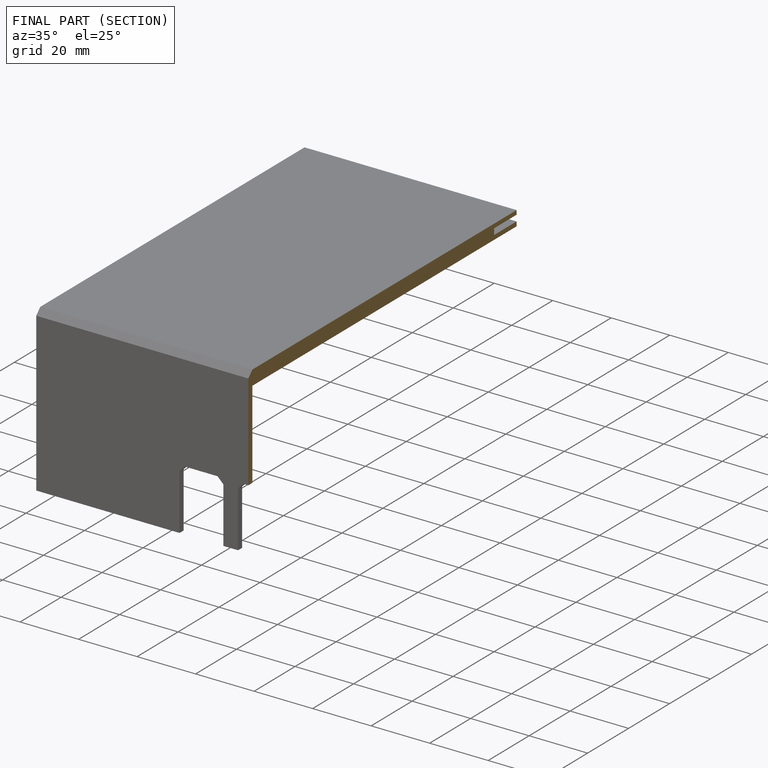
[diagram: finished part — half-section view (interior)]
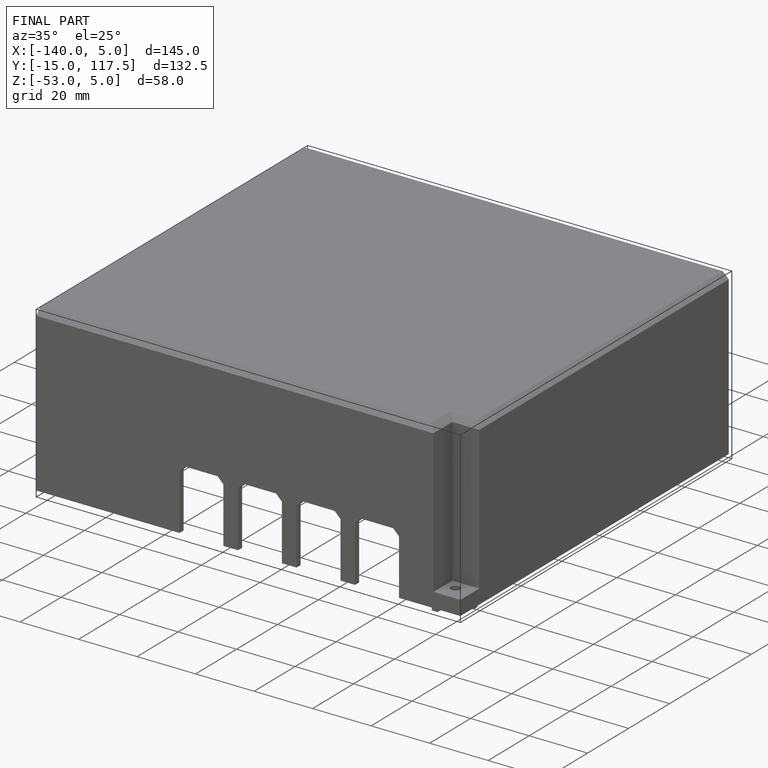
[diagram: finished part — iso view with bounding-box wireframe]
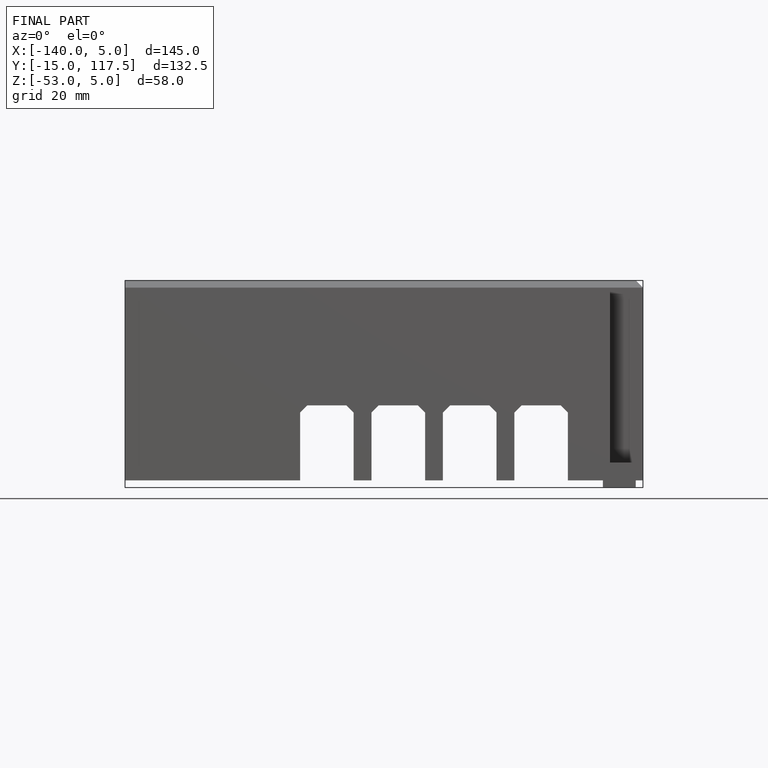
[diagram: finished part — front view with bounding-box wireframe]
